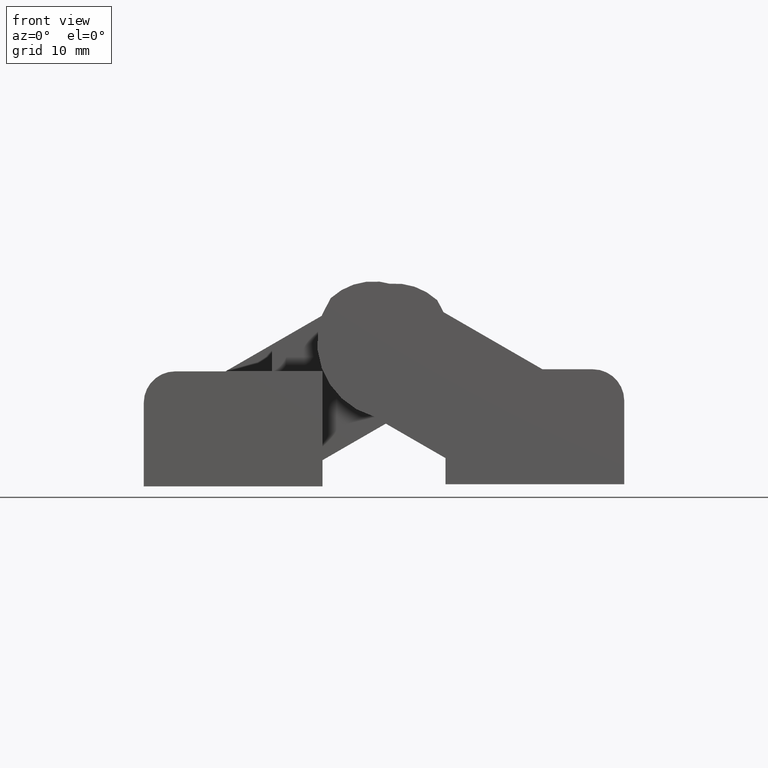
[diagram: clean part render]
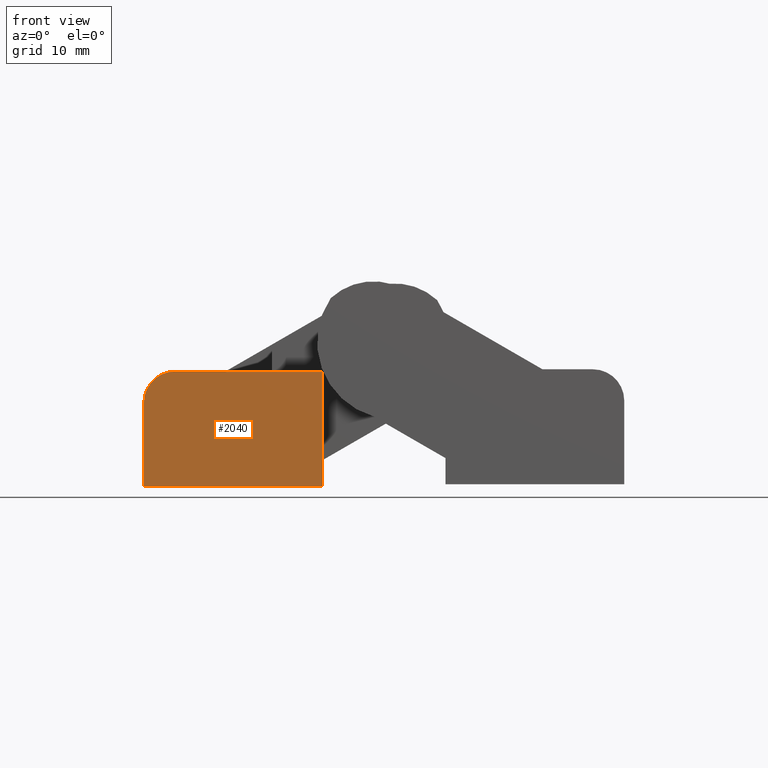
[diagram: same view with one face highlighted and labeled with its STEP entity id]
A machine part, front view. The second image highlights one B-rep face of the part: STEP entity #2040.
In plain terms, the highlighted planar face has unit normal (0, 1, 0).
Its self-contained STEP definition (entity closure, byte-faithful):
#1310=CARTESIAN_POINT('',(-8.549999999965849,-39.599999999841664,7.999999999968568));
#1311=VERTEX_POINT('',#1310);
#1320=CARTESIAN_POINT('',(-5.549999999978127,-39.599999999841664,10.999999999956119));
#1321=VERTEX_POINT('',#1320);
#1322=CARTESIAN_POINT('',(-5.549999999978127,-39.599999999841664,7.999999999968568));
#1323=DIRECTION('',(1.224647E-016,1.0,-6.123234E-017));
#1324=DIRECTION('',(-1.0,1.224647E-016,-7.498799E-033));
#1325=AXIS2_PLACEMENT_3D('',#1322,#1323,#1324);
#1326=CIRCLE('',#1325,2.999999999987722);
#1327=EDGE_CURVE('',#1311,#1321,#1326,.T.);
#1919=CARTESIAN_POINT('',(-8.549999999965849,-39.599999999841664,2.424801E-015));
#1920=VERTEX_POINT('',#1919);
#1937=CARTESIAN_POINT('',(8.549999999965849,-39.599999999841664,2.424801E-015));
#1938=VERTEX_POINT('',#1937);
#1945=CARTESIAN_POINT('',(8.549999999965849,-39.599999999841664,2.424801E-015));
#1946=DIRECTION('',(-1.0,0.0,0.0));
#1947=VECTOR('',#1946,17.099999999931697);
#1948=LINE('',#1945,#1947);
#1949=EDGE_CURVE('',#1938,#1920,#1948,.T.);
#1999=CARTESIAN_POINT('',(-8.549999999965849,-39.599999999841664,2.424801E-015));
#2000=DIRECTION('',(0.0,0.0,1.0));
#2001=VECTOR('',#2000,7.999999999968566);
#2002=LINE('',#1999,#2001);
#2003=EDGE_CURVE('',#1920,#1311,#2002,.T.);
#2016=CARTESIAN_POINT('',(23.772811654365967,-39.599999999841664,-1.941196733617344));
#2017=DIRECTION('',(0.0,1.0,0.0));
#2018=DIRECTION('',(-1.0,0.0,0.0));
#2019=AXIS2_PLACEMENT_3D('',#2016,#2017,#2018);
#2020=PLANE('',#2019);
#2021=ORIENTED_EDGE('',*,*,#2003,.F.);
#2022=ORIENTED_EDGE('',*,*,#1949,.F.);
#2023=CARTESIAN_POINT('',(8.549999999965849,-39.600000000037660,10.999999999956289));
#2024=VERTEX_POINT('',#2023);
#2025=CARTESIAN_POINT('',(8.549999999965849,-39.600000000037660,10.999999999956289));
#2026=DIRECTION('',(-2.583792E-015,1.781783E-011,-1.0));
#2027=VECTOR('',#2026,10.999999999956287);
#2028=LINE('',#2025,#2027);
#2029=EDGE_CURVE('',#2024,#1938,#2028,.T.);
#2030=ORIENTED_EDGE('',*,*,#2029,.F.);
#2031=CARTESIAN_POINT('',(8.549999999965849,-39.600000000037660,10.999999999956289));
#2032=DIRECTION('',(-1.0,1.390043E-011,-1.209434E-014));
#2033=VECTOR('',#2032,14.099999999943975);
#2034=LINE('',#2031,#2033);
#2035=EDGE_CURVE('',#2024,#1321,#2034,.T.);
#2036=ORIENTED_EDGE('',*,*,#2035,.T.);
#2037=ORIENTED_EDGE('',*,*,#1327,.F.);
#2038=EDGE_LOOP('',(#2021,#2022,#2030,#2036,#2037));
#2039=FACE_OUTER_BOUND('',#2038,.T.);
#2040=ADVANCED_FACE('',(#2039),#2020,.F.);